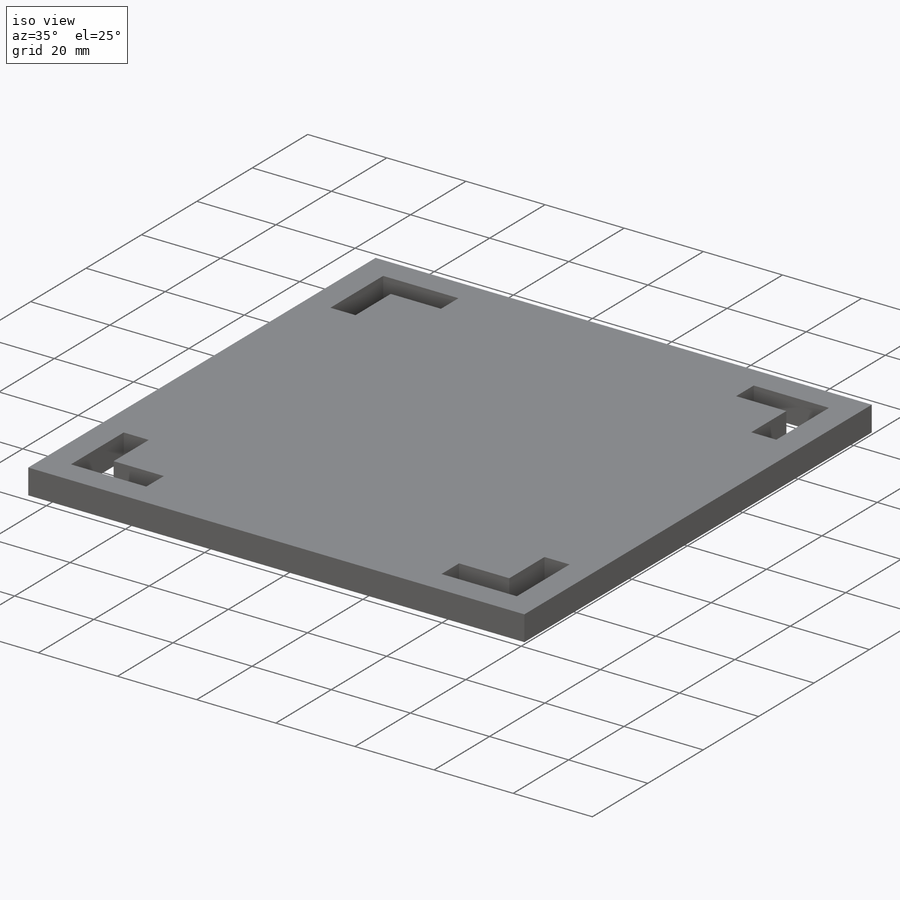
[diagram: iso view]
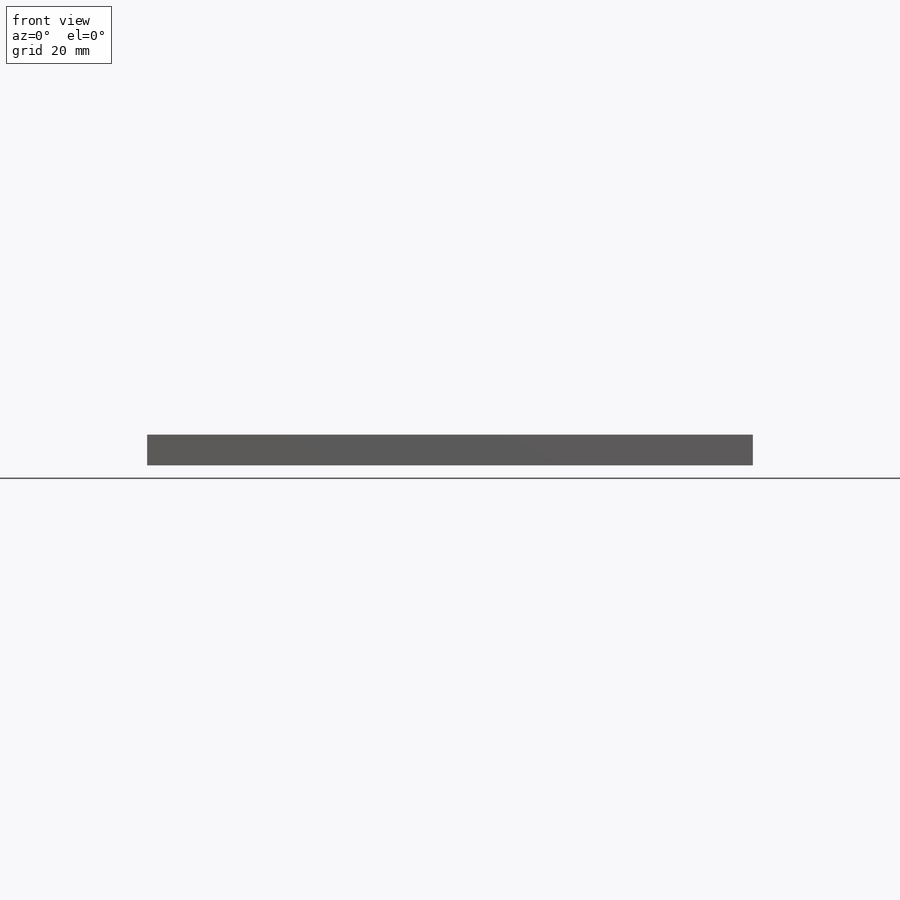
[diagram: front view]
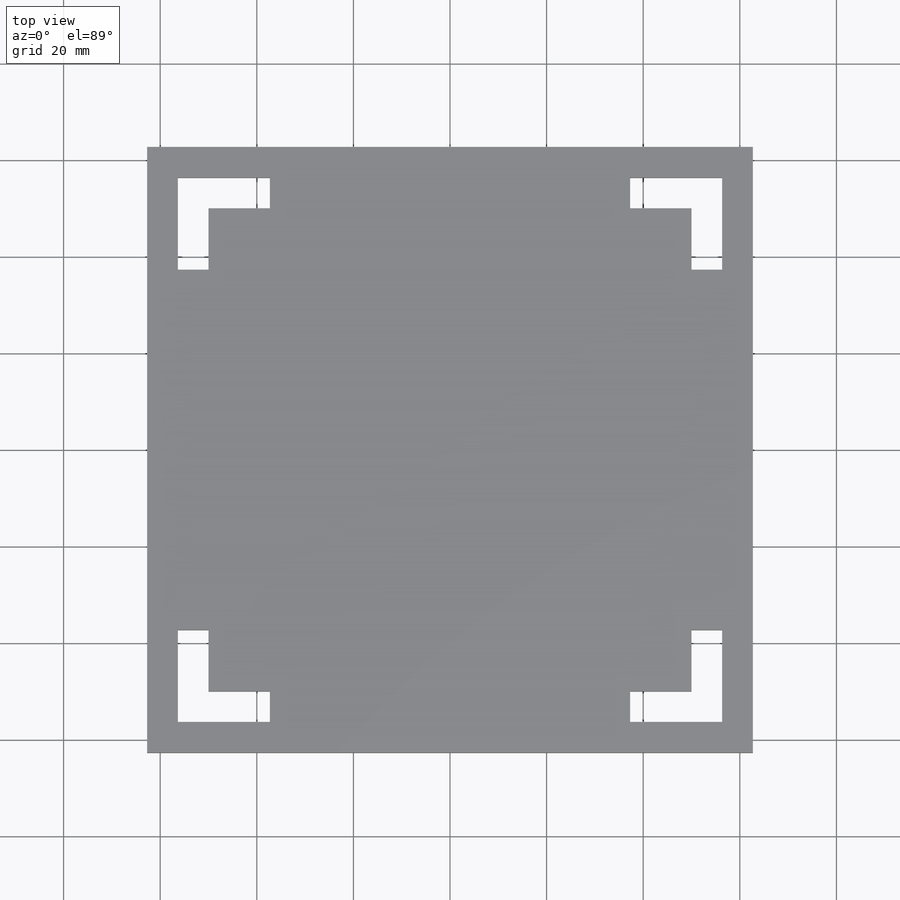
[diagram: top view]
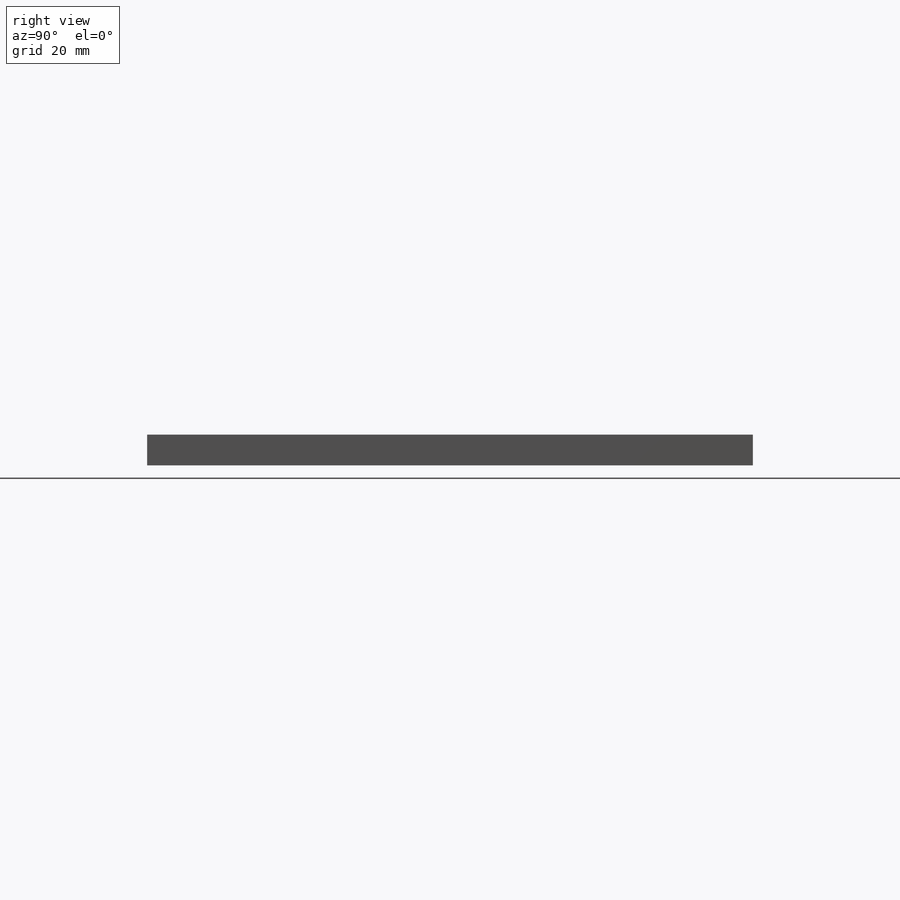
[diagram: right view]
SOLIDWORKS PART (.sldprt)
format: sldprt  version: not decoded by parser v0  size: 201,728 bytes
history: native  units: mm
features: sketch x4, cut_extrude x2, pattern_circular x2, material x1, extrude x1 (+13 scaffold rows collapsed)
feature tree (23):
  scaffold x13  (default folders/planes/origin — collapsed)
  material  "Acrylic (Medium-high impact)"
  sketch  "Sketch1"  dims[c1.D1=~181.077152mm c1.D2=~184.849592mm c2.D1=125.4mm c2.D2=125.4mm]
  extrude  "Boss-Extrude1"  Depth=6.35mm
  sketch  "Sketch2"  dims[c1.D1=109.6793mm c1.D2=~106.388921mm c2.D1=100.0mm c2.D2=100.0mm]
  sketch  "Sketch4"  dims[c1.D1=~8.691886mm c1.D2=~9.349073mm c2.D1=6.35mm c2.D2=12.7mm]
  cut_extrude  "Cut-Extrude1"  [1 undecoded]
  sketch  "Sketch5"  dims[c1.D1=~6.825648mm c1.D2=~21.139312mm c2.D1=19.05mm c2.D2=6.35mm]
  cut_extrude  "Cut-Extrude2"  [1 undecoded]
  pattern_circular  "CirPattern1"  Count=4 Angle=90deg
  pattern_circular  "CirPattern2"  Count=4 Angle=90deg
decode coverage: 7 of 9 modeling features carry decoded parameters
note: ~ marks probable driven/reference dimensions
note: 2 parameter values undecoded
note: suppression state not decoded; provenance and decode notes live in map.json
